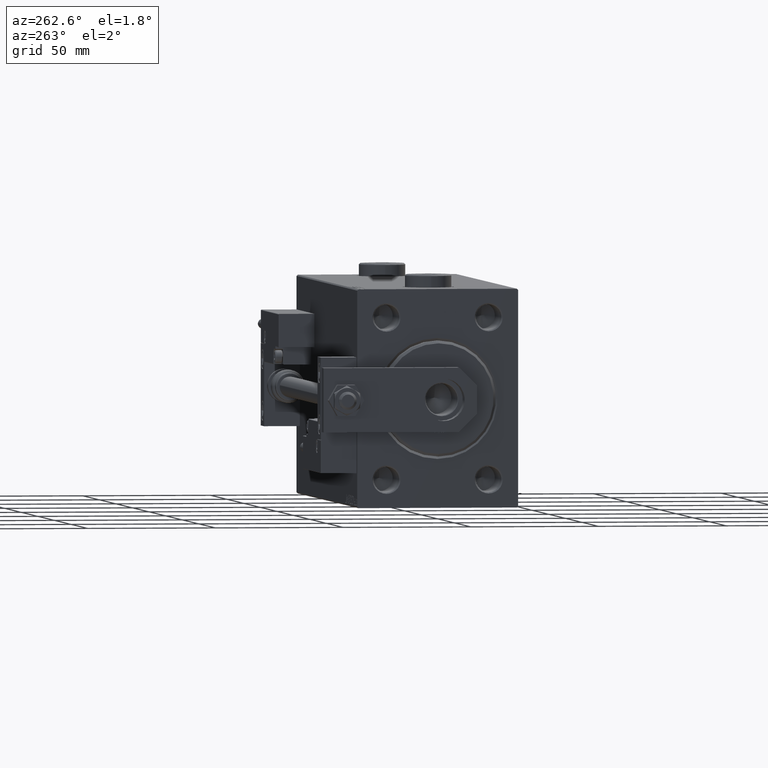
[diagram: clean part render]
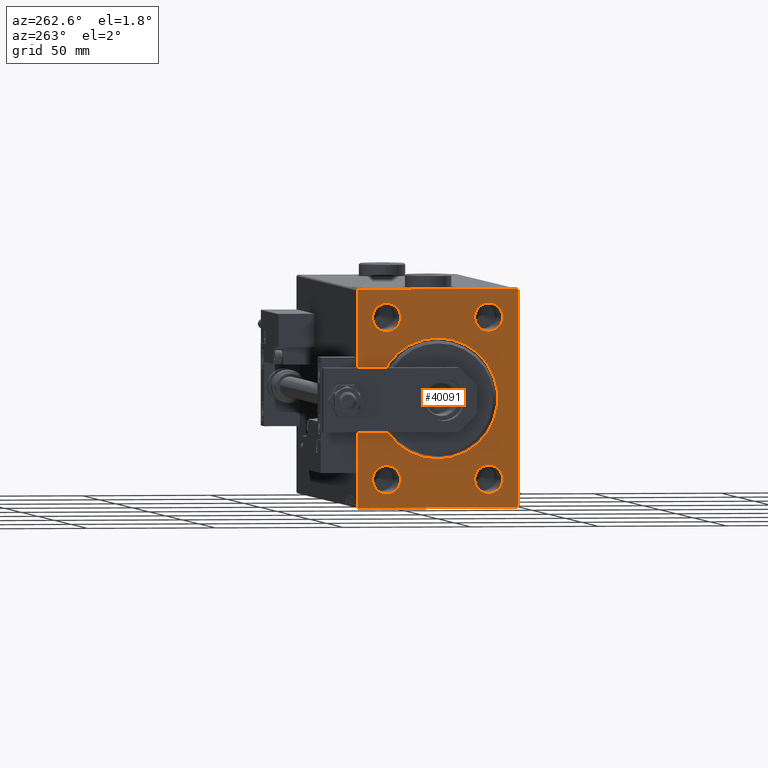
[diagram: same view with one face highlighted and labeled with its STEP entity id]
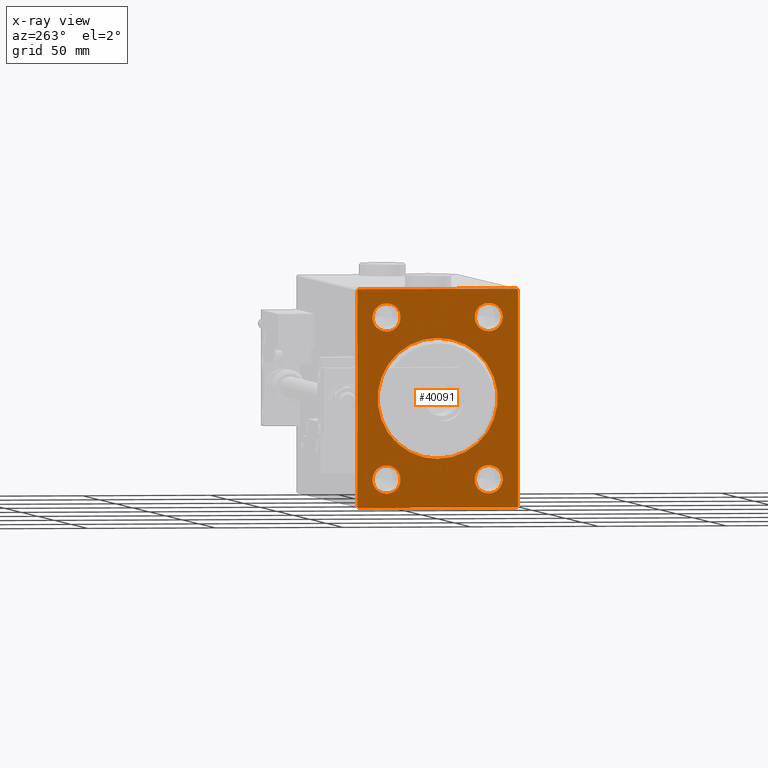
[diagram: x-ray of the same camera — body ghosted, the highlighted face saturated]
A machine part, auxiliary view. The second image highlights one B-rep face of the part: STEP entity #40091.
The next image is the same camera in x-ray: the body ghosted, the highlighted face saturated — about 0% of this face is hidden behind the body in this view.
In plain terms, the highlighted planar face has unit normal (1, 0, 0).
Its self-contained STEP definition (entity closure, byte-faithful):
#356 = CARTESIAN_POINT ( 'NONE',  ( 0.000000000000000000, -31.00000000000002842, 42.49999999999998579 ) ) ;
#437 = VERTEX_POINT ( 'NONE', #26096 ) ;
#492 = CARTESIAN_POINT ( 'NONE',  ( 0.000000000000000000, 0.000000000000000000, 23.49999999999996092 ) ) ;
#721 = CIRCLE ( 'NONE', #14306, 5.500000000000032863 ) ;
#821 = DIRECTION ( 'NONE',  ( 0.000000000000000000, 0.000000000000000000, -1.000000000000000000 ) ) ;
#931 = CARTESIAN_POINT ( 'NONE',  ( 0.000000000000000000, 31.00000000000001421, -42.50000000000000711 ) ) ;
#1078 = DIRECTION ( 'NONE',  ( -0.000000000000000000, 0.7071067811865474617, 0.7071067811865474617 ) ) ;
#1368 = EDGE_CURVE ( 'NONE', #5014, #52141, #30294, .T. ) ;
#1836 = LINE ( 'NONE', #50477, #40221 ) ;
#2013 = VERTEX_POINT ( 'NONE', #50710 ) ;
#2095 = EDGE_LOOP ( 'NONE', ( #27849, #35645 ) ) ;
#3184 = AXIS2_PLACEMENT_3D ( 'NONE', #45858, #25122, #21136 ) ;
#3205 = ORIENTED_EDGE ( 'NONE', *, *, #32300, .T. ) ;
#3457 = DIRECTION ( 'NONE',  ( 1.000000000000000000, 0.000000000000000000, 0.000000000000000000 ) ) ;
#3739 = AXIS2_PLACEMENT_3D ( 'NONE', #25869, #21887, #26123 ) ;
#3788 = DIRECTION ( 'NONE',  ( 0.000000000000000000, 0.000000000000000000, -1.000000000000000000 ) ) ;
#4243 = CIRCLE ( 'NONE', #51742, 5.500000000000032863 ) ;
#4919 = DIRECTION ( 'NONE',  ( 0.000000000000000000, 0.000000000000000000, -1.000000000000000000 ) ) ;
#5014 = VERTEX_POINT ( 'NONE', #50436 ) ;
#5192 = DIRECTION ( 'NONE',  ( 1.000000000000000000, 0.000000000000000000, 0.000000000000000000 ) ) ;
#5451 = CARTESIAN_POINT ( 'NONE',  ( 0.000000000000000000, -20.00000000000000355, -31.50000000000000000 ) ) ;
#5476 = EDGE_CURVE ( 'NONE', #17975, #51961, #37269, .T. ) ;
#6254 = CARTESIAN_POINT ( 'NONE',  ( 0.000000000000000000, -20.00000000000000355, 31.50000000000000000 ) ) ;
#6330 = EDGE_CURVE ( 'NONE', #437, #8107, #4243, .T. ) ;
#6779 = DIRECTION ( 'NONE',  ( 1.000000000000000000, 0.000000000000000000, 0.000000000000000000 ) ) ;
#7415 = CARTESIAN_POINT ( 'NONE',  ( 0.000000000000000000, -31.50000000000000000, -42.50000000000000711 ) ) ;
#7712 = DIRECTION ( 'NONE',  ( 0.000000000000000000, 0.000000000000000000, -1.000000000000000000 ) ) ;
#8107 = VERTEX_POINT ( 'NONE', #36917 ) ;
#9555 = DIRECTION ( 'NONE',  ( 0.000000000000000000, 0.000000000000000000, -1.000000000000000000 ) ) ;
#9995 = VECTOR ( 'NONE', #20371, 1000.000000000000114 ) ;
#10287 = AXIS2_PLACEMENT_3D ( 'NONE', #36445, #35922, #3788 ) ;
#10318 = CARTESIAN_POINT ( 'NONE',  ( 0.000000000000000000, 31.50000000000000000, 42.49999999999999289 ) ) ;
#10982 = VERTEX_POINT ( 'NONE', #356 ) ;
#11091 = LINE ( 'NONE', #10318, #26447 ) ;
#11133 = VERTEX_POINT ( 'NONE', #22457 ) ;
#11598 = AXIS2_PLACEMENT_3D ( 'NONE', #40114, #3457, #7712 ) ;
#12480 = LINE ( 'NONE', #26507, #42114 ) ;
#12520 = EDGE_CURVE ( 'NONE', #51961, #17975, #43373, .T. ) ;
#12649 = FACE_BOUND ( 'NONE', #2095, .T. ) ;
#12905 = FACE_BOUND ( 'NONE', #31403, .T. ) ;
#13804 = ORIENTED_EDGE ( 'NONE', *, *, #39604, .F. ) ;
#14306 = AXIS2_PLACEMENT_3D ( 'NONE', #16782, #49722, #821 ) ;
#14638 = ORIENTED_EDGE ( 'NONE', *, *, #32895, .T. ) ;
#14950 = EDGE_CURVE ( 'NONE', #8107, #437, #33244, .T. ) ;
#15806 = EDGE_CURVE ( 'NONE', #34969, #16669, #36529, .T. ) ;
#15855 = VERTEX_POINT ( 'NONE', #41037 ) ;
#15919 = LINE ( 'NONE', #7415, #44078 ) ;
#16046 = ORIENTED_EDGE ( 'NONE', *, *, #28023, .T. ) ;
#16327 = CARTESIAN_POINT ( 'NONE',  ( 0.000000000000000000, -20.00000000000000355, 37.00000000000003553 ) ) ;
#16382 = DIRECTION ( 'NONE',  ( 1.000000000000000000, 0.000000000000000000, 0.000000000000000000 ) ) ;
#16645 = CIRCLE ( 'NONE', #32746, 23.49999999999996092 ) ;
#16669 = VERTEX_POINT ( 'NONE', #19629 ) ;
#16782 = CARTESIAN_POINT ( 'NONE',  ( 0.000000000000000000, 19.99999999999999645, -31.50000000000000000 ) ) ;
#16800 = ORIENTED_EDGE ( 'NONE', *, *, #1368, .T. ) ;
#17269 = ORIENTED_EDGE ( 'NONE', *, *, #12520, .T. ) ;
#17975 = VERTEX_POINT ( 'NONE', #39033 ) ;
#19629 = CARTESIAN_POINT ( 'NONE',  ( 0.000000000000000000, -31.50000000000000000, -42.00000000000000000 ) ) ;
#19764 = EDGE_CURVE ( 'NONE', #30357, #49327, #32598, .T. ) ;
#20091 = PLANE ( 'NONE',  #42367 ) ;
#20103 = CARTESIAN_POINT ( 'NONE',  ( 0.000000000000000000, 31.50000000000001421, -42.00000000000000711 ) ) ;
#20357 = FACE_BOUND ( 'NONE', #22567, .T. ) ;
#20371 = DIRECTION ( 'NONE',  ( 0.000000000000000000, -0.7071067811865474617, -0.7071067811865474617 ) ) ;
#20422 = EDGE_CURVE ( 'NONE', #11133, #16669, #1836, .T. ) ;
#20594 = CARTESIAN_POINT ( 'NONE',  ( 0.000000000000000000, 19.99999999999999645, 31.50000000000000000 ) ) ;
#21136 = DIRECTION ( 'NONE',  ( 0.000000000000000000, 0.000000000000000000, -1.000000000000000000 ) ) ;
#21793 = EDGE_LOOP ( 'NONE', ( #33262, #3205, #33253, #16046, #41119, #14638, #13804, #26308 ) ) ;
#21806 = LINE ( 'NONE', #38009, #39093 ) ;
#21887 = DIRECTION ( 'NONE',  ( 1.000000000000000000, 0.000000000000000000, 0.000000000000000000 ) ) ;
#22012 = VERTEX_POINT ( 'NONE', #931 ) ;
#22457 = CARTESIAN_POINT ( 'NONE',  ( 0.000000000000000000, -31.50000000000000000, 42.00000000000001421 ) ) ;
#22567 = EDGE_LOOP ( 'NONE', ( #51895, #22827 ) ) ;
#22827 = ORIENTED_EDGE ( 'NONE', *, *, #6330, .T. ) ;
#23530 = DIRECTION ( 'NONE',  ( 1.000000000000000000, 0.000000000000000000, 0.000000000000000000 ) ) ;
#24073 = FACE_BOUND ( 'NONE', #47591, .T. ) ;
#24219 = CARTESIAN_POINT ( 'NONE',  ( 0.000000000000000000, 31.50000000000001421, -42.00000000000000711 ) ) ;
#24342 = ORIENTED_EDGE ( 'NONE', *, *, #27783, .T. ) ;
#24804 = CARTESIAN_POINT ( 'NONE',  ( 0.000000000000000000, 31.50000000000000000, 42.00000000000002132 ) ) ;
#24863 = DIRECTION ( 'NONE',  ( 1.000000000000000000, 0.000000000000000000, 0.000000000000000000 ) ) ;
#25122 = DIRECTION ( 'NONE',  ( 1.000000000000000000, 0.000000000000000000, 0.000000000000000000 ) ) ;
#25869 = CARTESIAN_POINT ( 'NONE',  ( 0.000000000000000000, 19.99999999999999645, -31.50000000000000000 ) ) ;
#26046 = CARTESIAN_POINT ( 'NONE',  ( 0.000000000000000000, 0.000000000000000000, 0.000000000000000000 ) ) ;
#26083 = CIRCLE ( 'NONE', #3184, 5.500000000000032863 ) ;
#26096 = CARTESIAN_POINT ( 'NONE',  ( 0.000000000000000000, 19.99999999999999645, 25.99999999999996803 ) ) ;
#26123 = DIRECTION ( 'NONE',  ( 0.000000000000000000, 0.000000000000000000, -1.000000000000000000 ) ) ;
#26308 = ORIENTED_EDGE ( 'NONE', *, *, #15806, .T. ) ;
#26447 = VECTOR ( 'NONE', #26484, 1000.000000000000000 ) ;
#26484 = DIRECTION ( 'NONE',  ( 0.000000000000000000, -1.000000000000000000, -1.101411730778925171E-16 ) ) ;
#26507 = CARTESIAN_POINT ( 'NONE',  ( 0.000000000000000000, 31.00000000000002842, 42.49999999999999289 ) ) ;
#26566 = DIRECTION ( 'NONE',  ( 0.000000000000000000, 0.000000000000000000, -1.000000000000000000 ) ) ;
#26707 = EDGE_CURVE ( 'NONE', #50251, #2013, #16645, .T. ) ;
#26804 = CIRCLE ( 'NONE', #11598, 23.49999999999996092 ) ;
#27583 = DIRECTION ( 'NONE',  ( 0.000000000000000000, 1.000000000000000000, 0.000000000000000000 ) ) ;
#27783 = EDGE_CURVE ( 'NONE', #2013, #50251, #26804, .T. ) ;
#27849 = ORIENTED_EDGE ( 'NONE', *, *, #35541, .T. ) ;
#28023 = EDGE_CURVE ( 'NONE', #15855, #35097, #12480, .T. ) ;
#28769 = AXIS2_PLACEMENT_3D ( 'NONE', #5451, #24863, #49585 ) ;
#28988 = AXIS2_PLACEMENT_3D ( 'NONE', #20594, #23530, #40253 ) ;
#30294 = CIRCLE ( 'NONE', #38796, 5.500000000000032863 ) ;
#30357 = VERTEX_POINT ( 'NONE', #43615 ) ;
#31403 = EDGE_LOOP ( 'NONE', ( #35402, #16800 ) ) ;
#32300 = EDGE_CURVE ( 'NONE', #11133, #10982, #37468, .T. ) ;
#32569 = FACE_BOUND ( 'NONE', #34869, .T. ) ;
#32598 = CIRCLE ( 'NONE', #3739, 5.500000000000032863 ) ;
#32746 = AXIS2_PLACEMENT_3D ( 'NONE', #26046, #46533, #26566 ) ;
#32895 = EDGE_CURVE ( 'NONE', #42996, #22012, #41065, .T. ) ;
#32935 = EDGE_CURVE ( 'NONE', #52141, #5014, #26083, .T. ) ;
#33244 = CIRCLE ( 'NONE', #28988, 5.500000000000032863 ) ;
#33253 = ORIENTED_EDGE ( 'NONE', *, *, #46147, .F. ) ;
#33262 = ORIENTED_EDGE ( 'NONE', *, *, #20422, .F. ) ;
#33348 = FACE_OUTER_BOUND ( 'NONE', #21793, .T. ) ;
#33711 = VECTOR ( 'NONE', #1078, 1000.000000000000114 ) ;
#34070 = ORIENTED_EDGE ( 'NONE', *, *, #26707, .T. ) ;
#34869 = EDGE_LOOP ( 'NONE', ( #34070, #24342 ) ) ;
#34969 = VERTEX_POINT ( 'NONE', #50637 ) ;
#35097 = VERTEX_POINT ( 'NONE', #24804 ) ;
#35402 = ORIENTED_EDGE ( 'NONE', *, *, #32935, .T. ) ;
#35541 = EDGE_CURVE ( 'NONE', #49327, #30357, #721, .T. ) ;
#35645 = ORIENTED_EDGE ( 'NONE', *, *, #19764, .T. ) ;
#35922 = DIRECTION ( 'NONE',  ( 1.000000000000000000, 0.000000000000000000, 0.000000000000000000 ) ) ;
#36418 = CARTESIAN_POINT ( 'NONE',  ( 0.000000000000000000, -31.50000000000000000, 42.00000000000001421 ) ) ;
#36445 = CARTESIAN_POINT ( 'NONE',  ( 0.000000000000000000, -20.00000000000000355, -31.50000000000000000 ) ) ;
#36529 = LINE ( 'NONE', #45049, #43486 ) ;
#36648 = ORIENTED_EDGE ( 'NONE', *, *, #5476, .T. ) ;
#36917 = CARTESIAN_POINT ( 'NONE',  ( 0.000000000000000000, 19.99999999999999645, 37.00000000000003553 ) ) ;
#37269 = CIRCLE ( 'NONE', #28769, 5.500000000000032863 ) ;
#37468 = LINE ( 'NONE', #36418, #33711 ) ;
#37862 = DIRECTION ( 'NONE',  ( 0.000000000000000000, 0.000000000000000000, -1.000000000000000000 ) ) ;
#38009 = CARTESIAN_POINT ( 'NONE',  ( 0.000000000000000000, 31.50000000000001421, -42.50000000000000711 ) ) ;
#38796 = AXIS2_PLACEMENT_3D ( 'NONE', #6254, #6779, #46391 ) ;
#39033 = CARTESIAN_POINT ( 'NONE',  ( 0.000000000000000000, -20.00000000000000355, -37.00000000000003553 ) ) ;
#39093 = VECTOR ( 'NONE', #42267, 1000.000000000000000 ) ;
#39604 = EDGE_CURVE ( 'NONE', #34969, #22012, #15919, .T. ) ;
#40091 = ADVANCED_FACE ( 'NONE', ( #32569, #24073, #12905, #20357, #12649, #33348 ), #20091, .F. ) ;
#40114 = CARTESIAN_POINT ( 'NONE',  ( 0.000000000000000000, 0.000000000000000000, 0.000000000000000000 ) ) ;
#40221 = VECTOR ( 'NONE', #9555, 1000.000000000000000 ) ;
#40253 = DIRECTION ( 'NONE',  ( 0.000000000000000000, 0.000000000000000000, -1.000000000000000000 ) ) ;
#41037 = CARTESIAN_POINT ( 'NONE',  ( 0.000000000000000000, 31.00000000000002842, 42.49999999999999289 ) ) ;
#41065 = LINE ( 'NONE', #20103, #9995 ) ;
#41119 = ORIENTED_EDGE ( 'NONE', *, *, #43879, .F. ) ;
#41949 = DIRECTION ( 'NONE',  ( -0.000000000000000000, 0.7071067811865474617, -0.7071067811865474617 ) ) ;
#42114 = VECTOR ( 'NONE', #41949, 1000.000000000000114 ) ;
#42267 = DIRECTION ( 'NONE',  ( 0.000000000000000000, -1.632680918566406547E-16, 1.000000000000000000 ) ) ;
#42367 = AXIS2_PLACEMENT_3D ( 'NONE', #49580, #16382, #4919 ) ;
#42996 = VERTEX_POINT ( 'NONE', #24219 ) ;
#43373 = CIRCLE ( 'NONE', #10287, 5.500000000000032863 ) ;
#43424 = CARTESIAN_POINT ( 'NONE',  ( 0.000000000000000000, -20.00000000000000355, -25.99999999999996803 ) ) ;
#43486 = VECTOR ( 'NONE', #43535, 999.9999999999998863 ) ;
#43535 = DIRECTION ( 'NONE',  ( -0.000000000000000000, -0.7071067811865425767, 0.7071067811865525687 ) ) ;
#43615 = CARTESIAN_POINT ( 'NONE',  ( 0.000000000000000000, 19.99999999999999645, -37.00000000000003553 ) ) ;
#43879 = EDGE_CURVE ( 'NONE', #42996, #35097, #21806, .T. ) ;
#44078 = VECTOR ( 'NONE', #27583, 1000.000000000000000 ) ;
#45049 = CARTESIAN_POINT ( 'NONE',  ( 0.000000000000000000, -31.00000000000000000, -42.50000000000000711 ) ) ;
#45589 = CARTESIAN_POINT ( 'NONE',  ( 0.000000000000000000, 19.99999999999999645, 31.50000000000000000 ) ) ;
#45858 = CARTESIAN_POINT ( 'NONE',  ( 0.000000000000000000, -20.00000000000000355, 31.50000000000000000 ) ) ;
#46147 = EDGE_CURVE ( 'NONE', #15855, #10982, #11091, .T. ) ;
#46391 = DIRECTION ( 'NONE',  ( 0.000000000000000000, 0.000000000000000000, -1.000000000000000000 ) ) ;
#46533 = DIRECTION ( 'NONE',  ( 1.000000000000000000, 0.000000000000000000, 0.000000000000000000 ) ) ;
#47591 = EDGE_LOOP ( 'NONE', ( #17269, #36648 ) ) ;
#48399 = CARTESIAN_POINT ( 'NONE',  ( 0.000000000000000000, 19.99999999999999645, -25.99999999999996803 ) ) ;
#49327 = VERTEX_POINT ( 'NONE', #48399 ) ;
#49580 = CARTESIAN_POINT ( 'NONE',  ( 0.000000000000000000, 0.000000000000000000, 0.000000000000000000 ) ) ;
#49585 = DIRECTION ( 'NONE',  ( 0.000000000000000000, 0.000000000000000000, -1.000000000000000000 ) ) ;
#49722 = DIRECTION ( 'NONE',  ( 1.000000000000000000, 0.000000000000000000, 0.000000000000000000 ) ) ;
#50251 = VERTEX_POINT ( 'NONE', #492 ) ;
#50436 = CARTESIAN_POINT ( 'NONE',  ( 0.000000000000000000, -20.00000000000000355, 25.99999999999996803 ) ) ;
#50477 = CARTESIAN_POINT ( 'NONE',  ( 0.000000000000000000, -31.50000000000000000, 42.49999999999998579 ) ) ;
#50637 = CARTESIAN_POINT ( 'NONE',  ( 0.000000000000000000, -31.00000000000000000, -42.50000000000000711 ) ) ;
#50710 = CARTESIAN_POINT ( 'NONE',  ( 0.000000000000000000, 2.877919977996275587E-15, -23.49999999999996092 ) ) ;
#51742 = AXIS2_PLACEMENT_3D ( 'NONE', #45589, #5192, #37862 ) ;
#51895 = ORIENTED_EDGE ( 'NONE', *, *, #14950, .T. ) ;
#51961 = VERTEX_POINT ( 'NONE', #43424 ) ;
#52141 = VERTEX_POINT ( 'NONE', #16327 ) ;